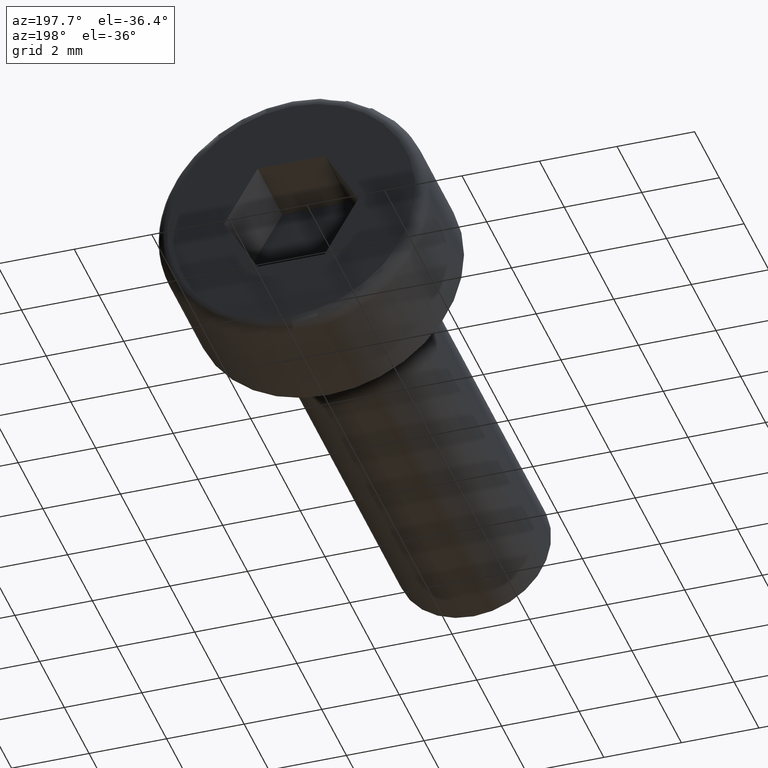
[diagram: clean part render]
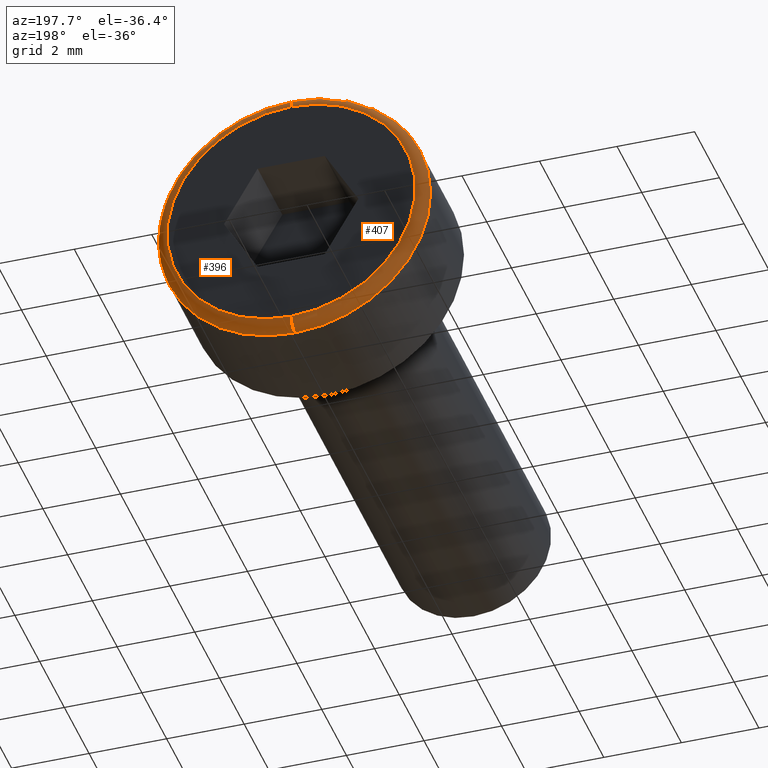
[diagram: same view with one multi-face feature highlighted, each face labeled with its STEP entity id]
A machine part, auxiliary view. The highlighted faces form ONE feature: a constant-radius fillet chain: 2 tangent blend faces with common blend radius 0.3 mm. The faces share edges in the B-rep.
Their STEP definitions:
[1] entity #407 (Torus):
#49 = DIRECTION ( 'NONE',  ( 0.0000000000000000000, 0.0000000000000000000, 1.000000000000000000 ) ) ;
#52 = CARTESIAN_POINT ( 'NONE',  ( 4.102566777143633300E-016, 3.000000000000000000, -3.200000000000000200 ) ) ;
#60 = DIRECTION ( 'NONE',  ( -0.0000000000000000000, -1.000000000000000000, -0.0000000000000000000 ) ) ;
#63 = CARTESIAN_POINT ( 'NONE',  ( 0.0000000000000000000, 2.700000000000000200, 0.0000000000000000000 ) ) ;
#68 = CARTESIAN_POINT ( 'NONE',  ( 0.0000000000000000000, 3.000000000000000000, 3.200000000000000200 ) ) ;
#89 = DIRECTION ( 'NONE',  ( 0.0000000000000000000, 0.0000000000000000000, 1.000000000000000000 ) ) ;
#99 = CARTESIAN_POINT ( 'NONE',  ( 0.0000000000000000000, 2.700000000000000200, -3.500000000000000000 ) ) ;
#139 = DIRECTION ( 'NONE',  ( 1.224646799147353200E-016, 0.0000000000000000000, -1.000000000000000000 ) ) ;
#140 = DIRECTION ( 'NONE',  ( 0.0000000000000000000, 0.0000000000000000000, 1.000000000000000000 ) ) ;
#141 = DIRECTION ( 'NONE',  ( -1.000000000000000000, 0.0000000000000000000, 0.0000000000000000000 ) ) ;
#143 = CARTESIAN_POINT ( 'NONE',  ( 0.0000000000000000000, 2.700000000000000200, 3.200000000000000200 ) ) ;
#145 = DIRECTION ( 'NONE',  ( 1.000000000000000000, -0.0000000000000000000, 1.224646799147353200E-016 ) ) ;
#168 = CARTESIAN_POINT ( 'NONE',  ( 3.918869757271530500E-016, 2.700000000000000200, -3.200000000000000200 ) ) ;
#170 = CARTESIAN_POINT ( 'NONE',  ( 4.286263797015736600E-016, 2.700000000000000200, 3.500000000000000000 ) ) ;
#178 = DIRECTION ( 'NONE',  ( 0.0000000000000000000, 0.0000000000000000000, 1.000000000000000000 ) ) ;
#182 = DIRECTION ( 'NONE',  ( 0.0000000000000000000, 1.000000000000000000, 0.0000000000000000000 ) ) ;
#186 = CARTESIAN_POINT ( 'NONE',  ( 0.0000000000000000000, 3.000000000000000000, 0.0000000000000000000 ) ) ;
#206 = DIRECTION ( 'NONE',  ( 0.0000000000000000000, 1.000000000000000000, 0.0000000000000000000 ) ) ;
#207 = CARTESIAN_POINT ( 'NONE',  ( 0.0000000000000000000, 2.700000000000000200, 0.0000000000000000000 ) ) ;
#227 = TOROIDAL_SURFACE ( 'NONE', #463, 3.200000000000000200, 0.2999999999999999900 ) ;
#241 = VERTEX_POINT ( 'NONE', #99 ) ;
#249 = FACE_OUTER_BOUND ( 'NONE', #524, .T. ) ;
#282 = CIRCLE ( 'NONE', #477, 0.2999999999999999300 ) ;
#286 = CIRCLE ( 'NONE', #470, 3.500000000000000000 ) ;
#294 = CIRCLE ( 'NONE', #468, 0.2999999999999999300 ) ;
#306 = CIRCLE ( 'NONE', #474, 3.200000000000000200 ) ;
#329 = ORIENTED_EDGE ( 'NONE', *, *, #431, .F. ) ;
#337 = VERTEX_POINT ( 'NONE', #170 ) ;
#348 = ORIENTED_EDGE ( 'NONE', *, *, #424, .F. ) ;
#368 = ORIENTED_EDGE ( 'NONE', *, *, #435, .T. ) ;
#374 = VERTEX_POINT ( 'NONE', #52 ) ;
#376 = VERTEX_POINT ( 'NONE', #68 ) ;
#388 = ORIENTED_EDGE ( 'NONE', *, *, #419, .F. ) ;
#407 = ADVANCED_FACE ( 'NONE', ( #249 ), #227, .T. ) ;
#419 = EDGE_CURVE ( 'NONE', #241, #374, #294, .T. ) ;
#424 = EDGE_CURVE ( 'NONE', #337, #241, #286, .T. ) ;
#431 = EDGE_CURVE ( 'NONE', #374, #376, #306, .T. ) ;
#435 = EDGE_CURVE ( 'NONE', #337, #376, #282, .T. ) ;
#463 = AXIS2_PLACEMENT_3D ( 'NONE', #207, #206, #89 ) ;
#468 = AXIS2_PLACEMENT_3D ( 'NONE', #168, #145, #139 ) ;
#470 = AXIS2_PLACEMENT_3D ( 'NONE', #63, #60, #49 ) ;
#474 = AXIS2_PLACEMENT_3D ( 'NONE', #186, #182, #178 ) ;
#477 = AXIS2_PLACEMENT_3D ( 'NONE', #143, #141, #140 ) ;
#524 = EDGE_LOOP ( 'NONE', ( #388, #348, #368, #329 ) ) ;
[2] entity #396 (Torus):
#21 = DIRECTION ( 'NONE',  ( 0.0000000000000000000, 0.0000000000000000000, 1.000000000000000000 ) ) ;
#24 = DIRECTION ( 'NONE',  ( 0.0000000000000000000, 1.000000000000000000, 0.0000000000000000000 ) ) ;
#35 = CARTESIAN_POINT ( 'NONE',  ( 0.0000000000000000000, 2.700000000000000200, 0.0000000000000000000 ) ) ;
#52 = CARTESIAN_POINT ( 'NONE',  ( 4.102566777143633300E-016, 3.000000000000000000, -3.200000000000000200 ) ) ;
#68 = CARTESIAN_POINT ( 'NONE',  ( 0.0000000000000000000, 3.000000000000000000, 3.200000000000000200 ) ) ;
#99 = CARTESIAN_POINT ( 'NONE',  ( 0.0000000000000000000, 2.700000000000000200, -3.500000000000000000 ) ) ;
#139 = DIRECTION ( 'NONE',  ( 1.224646799147353200E-016, 0.0000000000000000000, -1.000000000000000000 ) ) ;
#140 = DIRECTION ( 'NONE',  ( 0.0000000000000000000, 0.0000000000000000000, 1.000000000000000000 ) ) ;
#141 = DIRECTION ( 'NONE',  ( -1.000000000000000000, 0.0000000000000000000, 0.0000000000000000000 ) ) ;
#143 = CARTESIAN_POINT ( 'NONE',  ( 0.0000000000000000000, 2.700000000000000200, 3.200000000000000200 ) ) ;
#145 = DIRECTION ( 'NONE',  ( 1.000000000000000000, -0.0000000000000000000, 1.224646799147353200E-016 ) ) ;
#151 = DIRECTION ( 'NONE',  ( 0.0000000000000000000, 1.000000000000000000, 0.0000000000000000000 ) ) ;
#155 = DIRECTION ( 'NONE',  ( 0.0000000000000000000, 0.0000000000000000000, 1.000000000000000000 ) ) ;
#156 = DIRECTION ( 'NONE',  ( -0.0000000000000000000, -1.000000000000000000, -0.0000000000000000000 ) ) ;
#157 = CARTESIAN_POINT ( 'NONE',  ( 0.0000000000000000000, 2.700000000000000200, 0.0000000000000000000 ) ) ;
#168 = CARTESIAN_POINT ( 'NONE',  ( 3.918869757271530500E-016, 2.700000000000000200, -3.200000000000000200 ) ) ;
#170 = CARTESIAN_POINT ( 'NONE',  ( 4.286263797015736600E-016, 2.700000000000000200, 3.500000000000000000 ) ) ;
#175 = CARTESIAN_POINT ( 'NONE',  ( 0.0000000000000000000, 3.000000000000000000, 0.0000000000000000000 ) ) ;
#192 = DIRECTION ( 'NONE',  ( 0.0000000000000000000, 0.0000000000000000000, 1.000000000000000000 ) ) ;
#213 = TOROIDAL_SURFACE ( 'NONE', #453, 3.200000000000000200, 0.2999999999999999900 ) ;
#215 = FACE_OUTER_BOUND ( 'NONE', #532, .T. ) ;
#241 = VERTEX_POINT ( 'NONE', #99 ) ;
#282 = CIRCLE ( 'NONE', #477, 0.2999999999999999300 ) ;
#283 = CIRCLE ( 'NONE', #472, 3.200000000000000200 ) ;
#293 = CIRCLE ( 'NONE', #476, 3.500000000000000000 ) ;
#294 = CIRCLE ( 'NONE', #468, 0.2999999999999999300 ) ;
#337 = VERTEX_POINT ( 'NONE', #170 ) ;
#374 = VERTEX_POINT ( 'NONE', #52 ) ;
#376 = VERTEX_POINT ( 'NONE', #68 ) ;
#396 = ADVANCED_FACE ( 'NONE', ( #215 ), #213, .T. ) ;
#419 = EDGE_CURVE ( 'NONE', #241, #374, #294, .T. ) ;
#426 = EDGE_CURVE ( 'NONE', #376, #374, #283, .T. ) ;
#434 = EDGE_CURVE ( 'NONE', #241, #337, #293, .T. ) ;
#435 = EDGE_CURVE ( 'NONE', #337, #376, #282, .T. ) ;
#453 = AXIS2_PLACEMENT_3D ( 'NONE', #35, #151, #192 ) ;
#468 = AXIS2_PLACEMENT_3D ( 'NONE', #168, #145, #139 ) ;
#472 = AXIS2_PLACEMENT_3D ( 'NONE', #175, #24, #21 ) ;
#476 = AXIS2_PLACEMENT_3D ( 'NONE', #157, #156, #155 ) ;
#477 = AXIS2_PLACEMENT_3D ( 'NONE', #143, #141, #140 ) ;
#532 = EDGE_LOOP ( 'NONE', ( #558, #561, #560, #547 ) ) ;
#547 = ORIENTED_EDGE ( 'NONE', *, *, #435, .F. ) ;
#558 = ORIENTED_EDGE ( 'NONE', *, *, #434, .F. ) ;
#560 = ORIENTED_EDGE ( 'NONE', *, *, #426, .F. ) ;
#561 = ORIENTED_EDGE ( 'NONE', *, *, #419, .T. ) ;